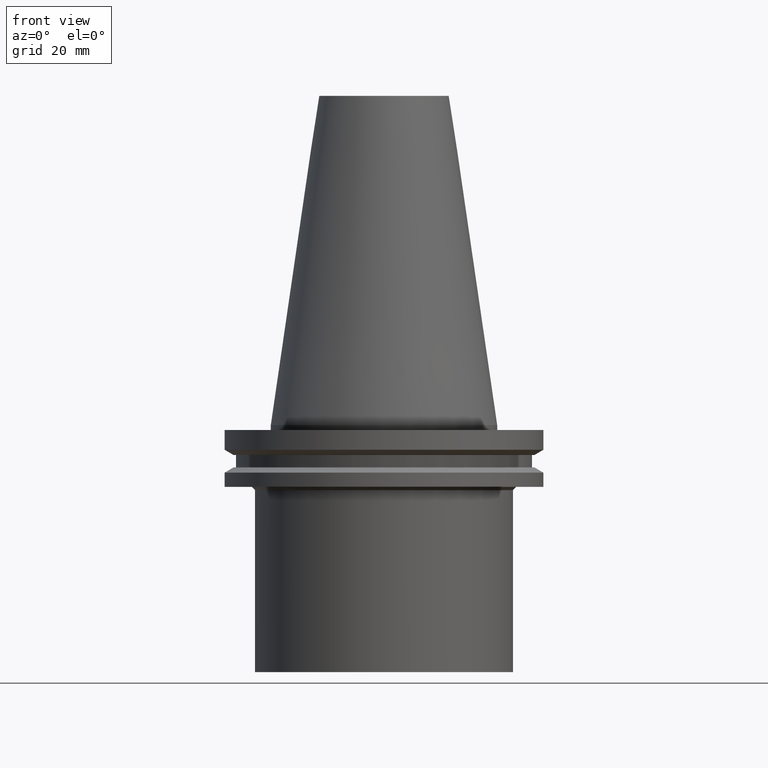
[diagram: clean part render]
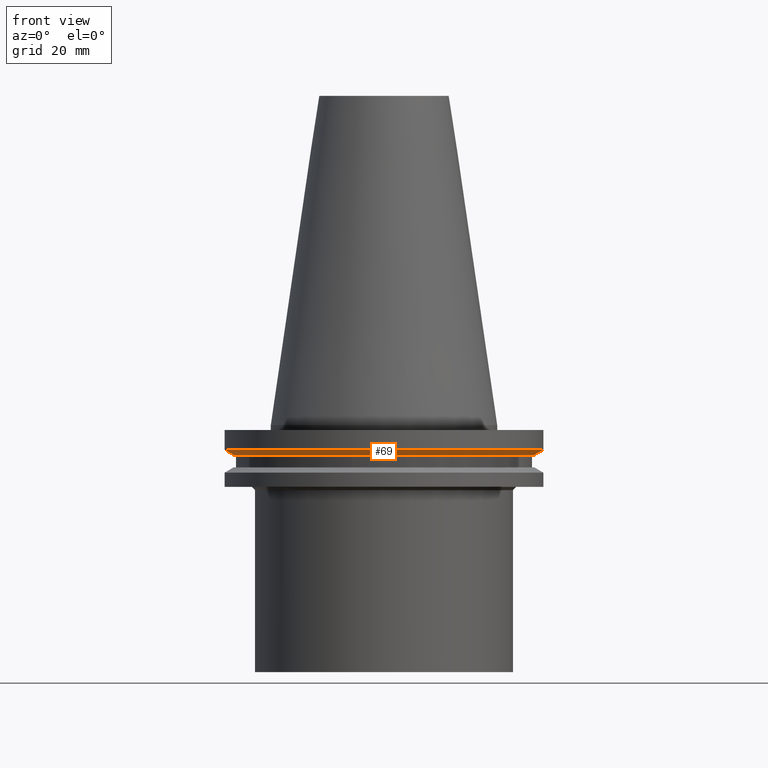
[diagram: same view with one face highlighted and labeled with its STEP entity id]
A machine part, front view. The second image highlights one B-rep face of the part: STEP entity #69.
In plain terms, the highlighted conical surface has half-angle 60 deg.
Its self-contained STEP definition (entity closure, byte-faithful):
#69=ADVANCED_FACE('Unnamed[1]',(#167,#168),#169,.T.);
#71=EDGE_CURVE('Unnamed[1]',#171,#171,#172,.T.);
#114=EDGE_CURVE('Unnamed[1]',#239,#239,#240,.T.);
#167=FACE_BOUND('',#296,.T.);
#168=FACE_BOUND('',#297,.T.);
#169=CONICAL_SURFACE('',#298,47.822529226926,1.04719755119663);
#171=VERTEX_POINT('',#301);
#172=CIRCLE('',#302,46.432558453852);
#239=VERTEX_POINT('',#387);
#240=CIRCLE('',#388,49.2125);
#296=EDGE_LOOP('',(#439));
#297=EDGE_LOOP('',(#440));
#298=AXIS2_PLACEMENT_3D('',#441,#442,#443);
#301=CARTESIAN_POINT('',(5.63337527607778E-016,46.432558453852,-9.19999999999993));
#302=AXIS2_PLACEMENT_3D('',#444,#445,#446);
#387=CARTESIAN_POINT('',(4.65059621976208E-016,49.2125,-7.59500000000002));
#388=AXIS2_PLACEMENT_3D('',#519,#520,#521);
#439=ORIENTED_EDGE('',*,*,#71,.F.);
#440=ORIENTED_EDGE('',*,*,#114,.T.);
#441=CARTESIAN_POINT('',(5.14198574791995E-016,1.43530353748685E-014,-8.39750000000001));
#442=DIRECTION('',(-6.12323399573677E-017,-7.39044660191276E-016,1.0));
#443=DIRECTION('',(-5.00805866072793E-032,1.0,7.39044660191276E-016));
#444=CARTESIAN_POINT('',(5.6333752760778E-016,1.49461187146719E-014,-9.19999999999996));
#445=DIRECTION('',(6.12323399573677E-017,7.39044660191263E-016,-1.0));
#446=DIRECTION('',(-5.00805866072764E-032,1.0,7.39044660191263E-016));
#519=CARTESIAN_POINT('',(4.65059621976211E-016,1.3759952035065E-014,-7.59500000000006));
#520=DIRECTION('',(6.12323399573677E-017,7.3904466019129E-016,-1.0));
#521=DIRECTION('',(-5.00805866072747E-032,1.0,7.3904466019129E-016));